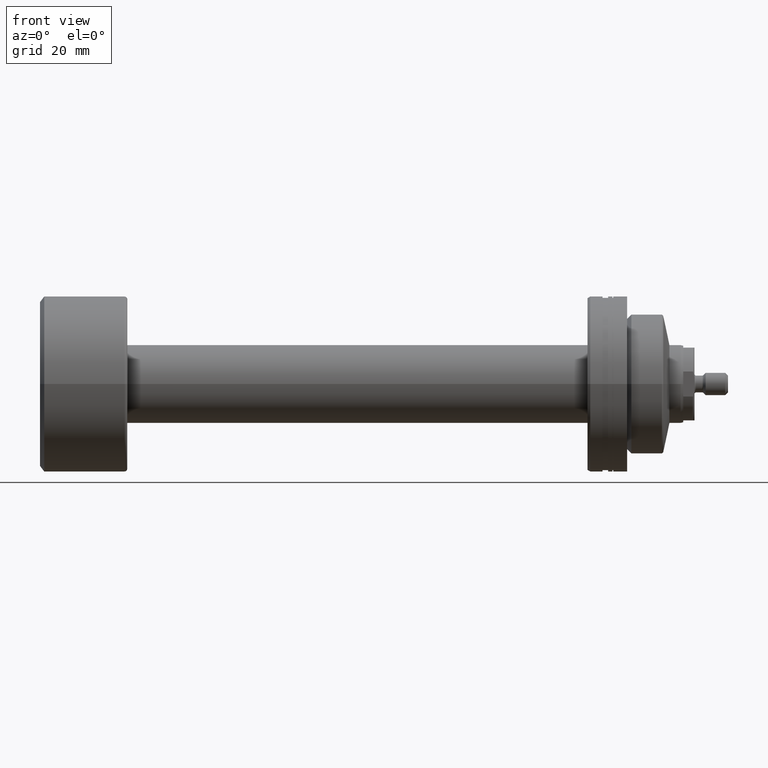
[diagram: clean part render]
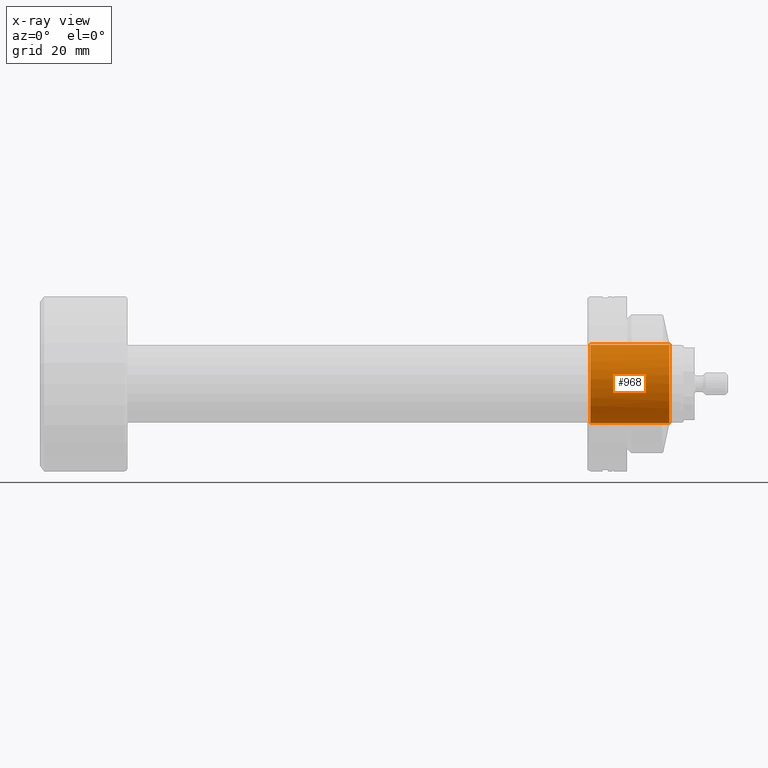
[diagram: x-ray — body ghosted, one internal face saturated and labeled with its STEP entity id]
A machine part, front view, then the same camera in x-ray: the body is ghosted and one INTERNAL B-rep face — a face not visible from any outside direction — is saturated and labeled: STEP entity #968.
In plain terms, the highlighted cylindrical surface (partial cylindrical patch) has radius 14 mm, axis along (1, 0, 0).
Its self-contained STEP definition (entity closure, byte-faithful):
#28 = DIRECTION ( 'NONE',  ( 1.920586705545750655E-15, -1.000000000000000000, 0.000000000000000000 ) ) ;
#36 = CARTESIAN_POINT ( 'NONE',  ( -2.914285714286113826, 6.162975822039154730E-30, -14.00000000000000178 ) ) ;
#131 = CIRCLE ( 'NONE', #687, 14.00000000000000178 ) ;
#166 = EDGE_CURVE ( 'NONE', #2424, #2214, #131, .T. ) ;
#176 = VECTOR ( 'NONE', #2356, 1000.000000000000000 ) ;
#304 = DIRECTION ( 'NONE',  ( 1.920586705545750655E-15, -1.000000000000000000, 0.000000000000000000 ) ) ;
#315 = CARTESIAN_POINT ( 'NONE',  ( -2.914285714286113826, 5.285403157867643656E-14, 0.000000000000000000 ) ) ;
#443 = FACE_OUTER_BOUND ( 'NONE', #631, .T. ) ;
#543 = CIRCLE ( 'NONE', #2464, 14.00000000000000178 ) ;
#565 = EDGE_CURVE ( 'NONE', #1513, #821, #543, .T. ) ;
#612 = LINE ( 'NONE', #1018, #2328 ) ;
#618 = CARTESIAN_POINT ( 'NONE',  ( -2.914285714286113826, 5.285403157867643656E-14, 0.000000000000000000 ) ) ;
#631 = EDGE_LOOP ( 'NONE', ( #1039, #2363, #1914, #1338, #2729 ) ) ;
#687 = AXIS2_PLACEMENT_3D ( 'NONE', #1380, #2237, #2196 ) ;
#771 = CIRCLE ( 'NONE', #1386, 14.00000000000000178 ) ;
#821 = VERTEX_POINT ( 'NONE', #2539 ) ;
#855 = DIRECTION ( 'NONE',  ( -1.000000000000000000, -1.931394410353556421E-15, 0.000000000000000000 ) ) ;
#879 = DIRECTION ( 'NONE',  ( 1.000000000000000000, -0.000000000000000000, -0.000000000000000000 ) ) ;
#941 = EDGE_CURVE ( 'NONE', #1485, #1513, #771, .T. ) ;
#962 = EDGE_CURVE ( 'NONE', #2424, #1485, #2562, .T. ) ;
#966 = DIRECTION ( 'NONE',  ( -1.000000000000000000, -1.931394410353556421E-15, 0.000000000000000000 ) ) ;
#968 = ADVANCED_FACE ( 'NONE', ( #443 ), #1072, .F. ) ;
#1018 = CARTESIAN_POINT ( 'NONE',  ( -71.79797974644668557, 1.714505518806294835E-15, 14.00000000000000178 ) ) ;
#1039 = ORIENTED_EDGE ( 'NONE', *, *, #166, .T. ) ;
#1072 = CYLINDRICAL_SURFACE ( 'NONE', #1125, 14.00000000000000178 ) ;
#1113 = CARTESIAN_POINT ( 'NONE',  ( -2.914285714286086737, -13.99999999999995026, 0.000000000000000000 ) ) ;
#1125 = AXIS2_PLACEMENT_3D ( 'NONE', #1930, #879, #1723 ) ;
#1275 = EDGE_CURVE ( 'NONE', #2214, #821, #612, .T. ) ;
#1338 = ORIENTED_EDGE ( 'NONE', *, *, #941, .F. ) ;
#1380 = CARTESIAN_POINT ( 'NONE',  ( -31.20000000000002061, 0.000000000000000000, 0.000000000000000000 ) ) ;
#1386 = AXIS2_PLACEMENT_3D ( 'NONE', #618, #855, #28 ) ;
#1485 = VERTEX_POINT ( 'NONE', #36 ) ;
#1491 = CARTESIAN_POINT ( 'NONE',  ( -71.79797974644668557, 0.000000000000000000, -14.00000000000000178 ) ) ;
#1513 = VERTEX_POINT ( 'NONE', #1113 ) ;
#1723 = DIRECTION ( 'NONE',  ( 0.000000000000000000, 0.000000000000000000, -1.000000000000000000 ) ) ;
#1914 = ORIENTED_EDGE ( 'NONE', *, *, #565, .F. ) ;
#1930 = CARTESIAN_POINT ( 'NONE',  ( -71.79797974644668557, 0.000000000000000000, 0.000000000000000000 ) ) ;
#2003 = CARTESIAN_POINT ( 'NONE',  ( -31.20000000000002061, 0.000000000000000000, -14.00000000000000178 ) ) ;
#2196 = DIRECTION ( 'NONE',  ( 0.000000000000000000, 0.000000000000000000, -1.000000000000000000 ) ) ;
#2214 = VERTEX_POINT ( 'NONE', #2620 ) ;
#2237 = DIRECTION ( 'NONE',  ( -1.000000000000000000, 0.000000000000000000, 0.000000000000000000 ) ) ;
#2328 = VECTOR ( 'NONE', #2746, 1000.000000000000000 ) ;
#2356 = DIRECTION ( 'NONE',  ( 1.000000000000000000, -0.000000000000000000, -0.000000000000000000 ) ) ;
#2363 = ORIENTED_EDGE ( 'NONE', *, *, #1275, .T. ) ;
#2424 = VERTEX_POINT ( 'NONE', #2003 ) ;
#2464 = AXIS2_PLACEMENT_3D ( 'NONE', #315, #966, #304 ) ;
#2539 = CARTESIAN_POINT ( 'NONE',  ( -2.914285714286113826, 1.714505518806296807E-15, 14.00000000000000178 ) ) ;
#2562 = LINE ( 'NONE', #1491, #176 ) ;
#2620 = CARTESIAN_POINT ( 'NONE',  ( -31.20000000000002061, 1.714505518806294835E-15, 14.00000000000000178 ) ) ;
#2729 = ORIENTED_EDGE ( 'NONE', *, *, #962, .F. ) ;
#2746 = DIRECTION ( 'NONE',  ( 1.000000000000000000, -0.000000000000000000, -0.000000000000000000 ) ) ;